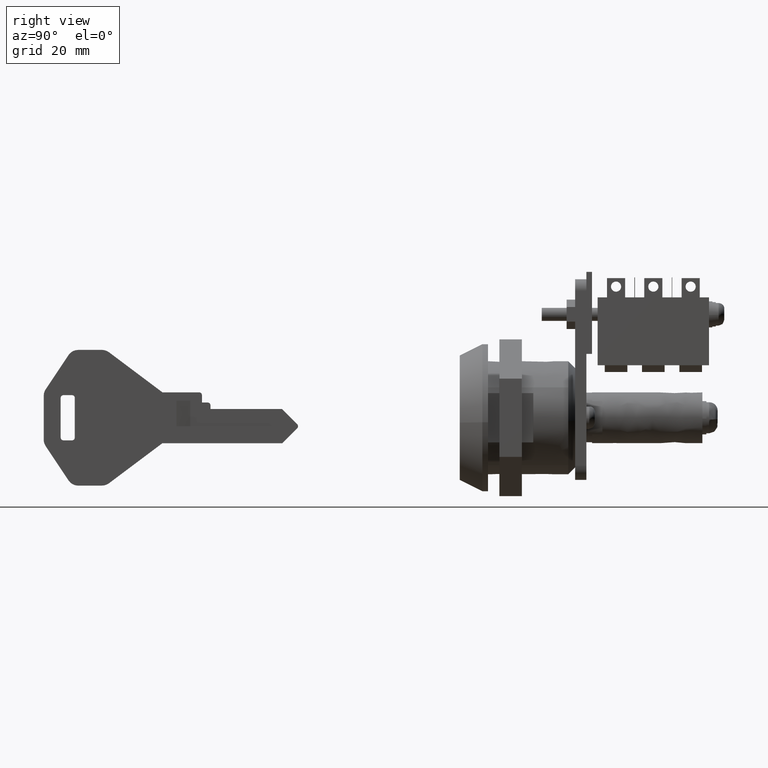
[diagram: clean part render]
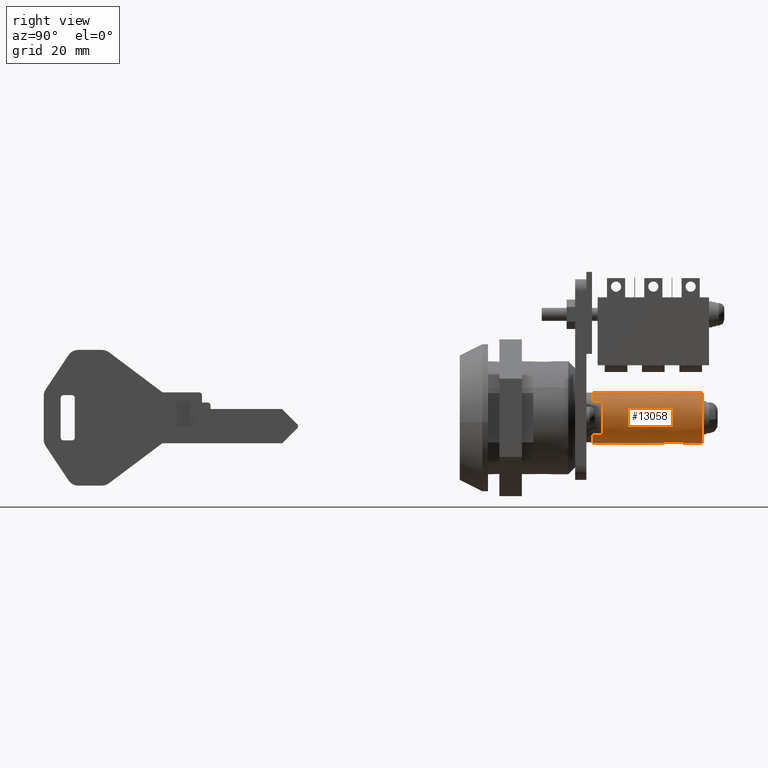
[diagram: same view with one face highlighted and labeled with its STEP entity id]
A machine part, right view. The second image highlights one B-rep face of the part: STEP entity #13058.
In plain terms, the highlighted face is a freeform B-spline surface patch.
Its self-contained STEP definition (entity closure, byte-faithful):
#12708=CARTESIAN_POINT('',(25.225983000000149,-3.398155871856435,-2.949996999999870));
#12709=VERTEX_POINT('',#12708);
#12710=CARTESIAN_POINT('',(25.225983000000149,3.398171871856870,-2.949996999999870));
#12711=VERTEX_POINT('',#12710);
#12717=CARTESIAN_POINT('',(23.425979999999999,3.398171871856845,-2.949996999999870));
#12718=VERTEX_POINT('',#12717);
#12719=CARTESIAN_POINT('',(23.425979999999999,3.398171871856845,-2.949996999999870));
#12720=CARTESIAN_POINT('',(25.225983000000149,3.398171871856870,-2.949996999999870));
#12721=QUASI_UNIFORM_CURVE('',1,(#12719,#12720),.UNSPECIFIED.,.F.,.U.);
#12722=EDGE_CURVE('',#12718,#12711,#12721,.T.);
#12724=CARTESIAN_POINT('',(23.425979999999999,-3.398155871856435,-2.949996999999870));
#12725=VERTEX_POINT('',#12724);
#12731=CARTESIAN_POINT('',(25.225983000000149,-3.398155871856435,-2.949996999999870));
#12732=CARTESIAN_POINT('',(23.425979999999999,-3.398155871856435,-2.949996999999870));
#12733=QUASI_UNIFORM_CURVE('',1,(#12731,#12732),.UNSPECIFIED.,.F.,.U.);
#12734=EDGE_CURVE('',#12709,#12725,#12733,.T.);
#12744=CARTESIAN_POINT('',(25.225983000000099,-3.398155871856235,2.949997000000125));
#12745=VERTEX_POINT('',#12744);
#12746=CARTESIAN_POINT('',(25.225983000000099,3.398171871856620,2.949997000000125));
#12747=VERTEX_POINT('',#12746);
#12753=CARTESIAN_POINT('',(23.425979999999999,-3.398155871856210,2.949997000000125));
#12754=VERTEX_POINT('',#12753);
#12755=CARTESIAN_POINT('',(23.425979999999999,-3.398155871856210,2.949997000000125));
#12756=CARTESIAN_POINT('',(25.225983000000099,-3.398155871856235,2.949997000000125));
#12757=QUASI_UNIFORM_CURVE('',1,(#12755,#12756),.UNSPECIFIED.,.F.,.U.);
#12758=EDGE_CURVE('',#12754,#12745,#12757,.T.);
#12760=CARTESIAN_POINT('',(23.425979999999999,3.398171871856650,2.949997000000125));
#12761=VERTEX_POINT('',#12760);
#12767=CARTESIAN_POINT('',(25.225983000000099,3.398171871856620,2.949997000000125));
#12768=CARTESIAN_POINT('',(23.425979999999999,3.398171871856650,2.949997000000125));
#12769=QUASI_UNIFORM_CURVE('',1,(#12767,#12768),.UNSPECIFIED.,.F.,.U.);
#12770=EDGE_CURVE('',#12747,#12761,#12769,.T.);
#12781=CARTESIAN_POINT('',(25.225983000000099,4.031136837890005,2.000000000000070));
#12782=VERTEX_POINT('',#12781);
#12783=CARTESIAN_POINT('',(25.225983000000099,4.031136837890005,2.000000000000070));
#12784=CARTESIAN_POINT('',(25.225983000000106,3.775393278514891,2.515467691734067));
#12785=CARTESIAN_POINT('',(25.225983000000099,3.398171871856620,2.949997000000124));
#12793=(BOUNDED_CURVE()B_SPLINE_CURVE(2,(#12783,#12784,#12785),.UNSPECIFIED.,.F.,.U.)CURVE()GEOMETRIC_REPRESENTATION_ITEM()QUASI_UNIFORM_CURVE()RATIONAL_B_SPLINE_CURVE((1.0,0.991923315947600,1.0))REPRESENTATION_ITEM(''));
#12794=EDGE_CURVE('',#12782,#12747,#12793,.T.);
#12820=CARTESIAN_POINT('',(25.225983000000099,4.031136977516345,-1.999999999999870));
#12821=VERTEX_POINT('',#12820);
#12827=CARTESIAN_POINT('',(25.225983000000099,3.398171871856854,-2.949996999999855));
#12828=CARTESIAN_POINT('',(25.225983000000099,3.775393299188232,-2.515467667919939));
#12829=CARTESIAN_POINT('',(25.225983000000099,4.031136977516345,-1.999999999999870));
#12837=(BOUNDED_CURVE()B_SPLINE_CURVE(2,(#12827,#12828,#12829),.UNSPECIFIED.,.F.,.U.)CURVE()GEOMETRIC_REPRESENTATION_ITEM()QUASI_UNIFORM_CURVE()RATIONAL_B_SPLINE_CURVE((1.0,0.991923315073031,1.0))REPRESENTATION_ITEM(''));
#12838=EDGE_CURVE('',#12711,#12821,#12837,.T.);
#12841=CARTESIAN_POINT('',(25.225983000000099,-3.398155871856234,2.949997000000125));
#12842=CARTESIAN_POINT('',(25.225983000000106,-5.959092491800611,2.167294E-013));
#12843=CARTESIAN_POINT('',(25.225983000000099,-3.398155871856448,-2.949996999999878));
#12851=(BOUNDED_CURVE()B_SPLINE_CURVE(2,(#12841,#12842,#12843),.UNSPECIFIED.,.F.,.U.)CURVE()GEOMETRIC_REPRESENTATION_ITEM()QUASI_UNIFORM_CURVE()RATIONAL_B_SPLINE_CURVE((1.0,0.755147527079230,1.0))REPRESENTATION_ITEM(''));
#12852=EDGE_CURVE('',#12745,#12709,#12851,.T.);
#12868=CARTESIAN_POINT('',(23.425979999999999,-3.398155871856446,-2.949996999999880));
#12869=CARTESIAN_POINT('',(23.425980000000006,-2.052575031020508,-4.500000000000001));
#12870=CARTESIAN_POINT('',(23.425979999999999,0.000008000000193,-4.500000000000000));
#12871=CARTESIAN_POINT('',(23.425980000000006,2.052591031020903,-4.500000000000001));
#12872=CARTESIAN_POINT('',(23.425979999999999,3.398171871856842,-2.949996999999868));
#12880=(BOUNDED_CURVE()B_SPLINE_CURVE(2,(#12868,#12869,#12870,#12871,#12872),.UNSPECIFIED.,.F.,.U.)B_SPLINE_CURVE_WITH_KNOTS((3,2,3),(0.0,0.500000000000000,1.0),.UNSPECIFIED.)CURVE()GEOMETRIC_REPRESENTATION_ITEM()RATIONAL_B_SPLINE_CURVE((1.0,0.909822754411227,1.0,0.909822754411227,1.0))REPRESENTATION_ITEM(''));
#12881=EDGE_CURVE('',#12725,#12718,#12880,.T.);
#12894=CARTESIAN_POINT('',(42.925980000000003,4.031136977516345,-1.999999791657385));
#12895=VERTEX_POINT('',#12894);
#12920=CARTESIAN_POINT('',(42.925980000000003,4.031136837890005,2.000000073083280));
#12921=VERTEX_POINT('',#12920);
#12927=CARTESIAN_POINT('',(42.925980000000003,4.031136837890005,2.000000073083281));
#12928=CARTESIAN_POINT('',(42.925980000000010,2.445782945203818,5.195382853852835));
#12929=CARTESIAN_POINT('',(42.925980000000003,-1.027104589654694,4.381214412485702));
#12930=CARTESIAN_POINT('',(42.925980000000010,-4.499992124513207,3.567045971118569));
#12931=CARTESIAN_POINT('',(42.925980000000003,-4.499991999999804,-0.000000157079636));
#12932=CARTESIAN_POINT('',(42.925980000000010,-4.499991875486404,-3.567046285277840));
#12933=CARTESIAN_POINT('',(42.925980000000003,-1.027104283788219,-4.381214484191678));
#12934=CARTESIAN_POINT('',(42.925980000000010,2.445783307909967,-5.195382683105516));
#12935=CARTESIAN_POINT('',(42.925980000000003,4.031136977516344,-1.999999791657387));
#12943=(BOUNDED_CURVE()B_SPLINE_CURVE(2,(#12927,#12928,#12929,#12930,#12931,#12932,#12933,#12934,#12935),.UNSPECIFIED.,.F.,.U.)B_SPLINE_CURVE_WITH_KNOTS((3,2,2,2,3),(0.0,0.250000000000000,0.500000000000000,0.750000000000000,1.0),.UNSPECIFIED.)CURVE()GEOMETRIC_REPRESENTATION_ITEM()RATIONAL_B_SPLINE_CURVE((1.0,0.783660388229610,1.0,0.783660388229610,1.0,0.783660388229610,1.0,0.783660388229610,1.0))REPRESENTATION_ITEM(''));
#12944=EDGE_CURVE('',#12921,#12895,#12943,.T.);
#12994=CARTESIAN_POINT('',(42.925980000000003,4.031136837890005,2.000000073083280));
#12995=CARTESIAN_POINT('',(25.225983000000099,4.031136837890005,2.000000000000070));
#12996=QUASI_UNIFORM_CURVE('',1,(#12994,#12995),.UNSPECIFIED.,.F.,.U.);
#12997=EDGE_CURVE('',#12921,#12782,#12996,.T.);
#13004=CARTESIAN_POINT('',(43.413480000000000,4.096078997482824,1.863384657976347));
#13005=CARTESIAN_POINT('',(22.926292499999999,4.096078997482824,1.863384657976347));
#13006=CARTESIAN_POINT('',(43.413480000000000,1.711055396949037,7.106116456072996));
#13007=CARTESIAN_POINT('',(22.926292499999992,1.711055396949037,7.106116456072996));
#13008=CARTESIAN_POINT('',(43.413480000000000,-2.798955430264335,3.523606634691478));
#13009=CARTESIAN_POINT('',(22.926292499999999,-2.798955430264335,3.523606634691478));
#13010=CARTESIAN_POINT('',(43.413480000000000,-7.308966257477708,-0.058903186690041));
#13011=CARTESIAN_POINT('',(22.926292499999992,-7.308966257477708,-0.058903186690041));
#13012=CARTESIAN_POINT('',(43.413480000000000,-2.741801919954952,-3.568259850800603));
#13013=CARTESIAN_POINT('',(22.926292499999999,-2.741801919954952,-3.568259850800603));
#13014=CARTESIAN_POINT('',(43.413480000000000,1.825362417567803,-7.077616514911166));
#13015=CARTESIAN_POINT('',(22.926292499999992,1.825362417567803,-7.077616514911166));
#13016=CARTESIAN_POINT('',(43.413480000000000,4.125579136683764,-1.797126260495740));
#13017=CARTESIAN_POINT('',(22.926292499999999,4.125579136683764,-1.797126260495740));
#13025=(BOUNDED_SURFACE()B_SPLINE_SURFACE(1,2,((#13004,#13006,#13008,#13010,#13012,#13014,#13016),(#13005,#13007,#13009,#13011,#13013,#13015,#13017)),.UNSPECIFIED.,.F.,.F.,.U.)B_SPLINE_SURFACE_WITH_KNOTS((2,2),(3,2,2,3),(0.0,20.487187500000012),(0.0,8.779186594185502,17.558373188371000,26.337559782556500),.UNSPECIFIED.)GEOMETRIC_REPRESENTATION_ITEM()RATIONAL_B_SPLINE_SURFACE(((1.0,0.615661475325658,1.0,0.615661475325658,1.0,0.615661475325658,1.0),(1.0,0.615661475325658,1.0,0.615661475325658,1.0,0.615661475325658,1.0)))REPRESENTATION_ITEM('')SURFACE());
#13026=ORIENTED_EDGE('',*,*,#12794,.T.);
#13027=ORIENTED_EDGE('',*,*,#12770,.T.);
#13028=CARTESIAN_POINT('',(23.425979999999999,3.398171871856633,2.949997000000110));
#13029=CARTESIAN_POINT('',(23.425979999999996,2.052591031020710,4.500000000000000));
#13030=CARTESIAN_POINT('',(23.425979999999999,0.000008000000193,4.500000000000000));
#13031=CARTESIAN_POINT('',(23.425979999999996,-2.052575031020300,4.500000000000000));
#13032=CARTESIAN_POINT('',(23.425979999999999,-3.398155871856222,2.949997000000139));
#13040=(BOUNDED_CURVE()B_SPLINE_CURVE(2,(#13028,#13029,#13030,#13031,#13032),.UNSPECIFIED.,.F.,.U.)B_SPLINE_CURVE_WITH_KNOTS((3,2,3),(0.0,0.500000000000000,1.0),.UNSPECIFIED.)CURVE()GEOMETRIC_REPRESENTATION_ITEM()RATIONAL_B_SPLINE_CURVE((1.0,0.909822754411241,1.0,0.909822754411241,1.0))REPRESENTATION_ITEM(''));
#13041=EDGE_CURVE('',#12761,#12754,#13040,.T.);
#13042=ORIENTED_EDGE('',*,*,#13041,.T.);
#13043=ORIENTED_EDGE('',*,*,#12758,.T.);
#13044=ORIENTED_EDGE('',*,*,#12852,.T.);
#13045=ORIENTED_EDGE('',*,*,#12734,.T.);
#13046=ORIENTED_EDGE('',*,*,#12881,.T.);
#13047=ORIENTED_EDGE('',*,*,#12722,.T.);
#13048=ORIENTED_EDGE('',*,*,#12838,.T.);
#13049=CARTESIAN_POINT('',(42.925980000000003,4.031136977516345,-1.999999791657385));
#13050=CARTESIAN_POINT('',(25.225983000000099,4.031136977516345,-1.999999999999870));
#13051=QUASI_UNIFORM_CURVE('',1,(#13049,#13050),.UNSPECIFIED.,.F.,.U.);
#13052=EDGE_CURVE('',#12895,#12821,#13051,.T.);
#13053=ORIENTED_EDGE('',*,*,#13052,.F.);
#13054=ORIENTED_EDGE('',*,*,#12944,.F.);
#13055=ORIENTED_EDGE('',*,*,#12997,.T.);
#13056=EDGE_LOOP('',(#13026,#13027,#13042,#13043,#13044,#13045,#13046,#13047,#13048,#13053,#13054,#13055));
#13057=FACE_OUTER_BOUND('',#13056,.T.);
#13058=ADVANCED_FACE('',(#13057),#13025,.T.);